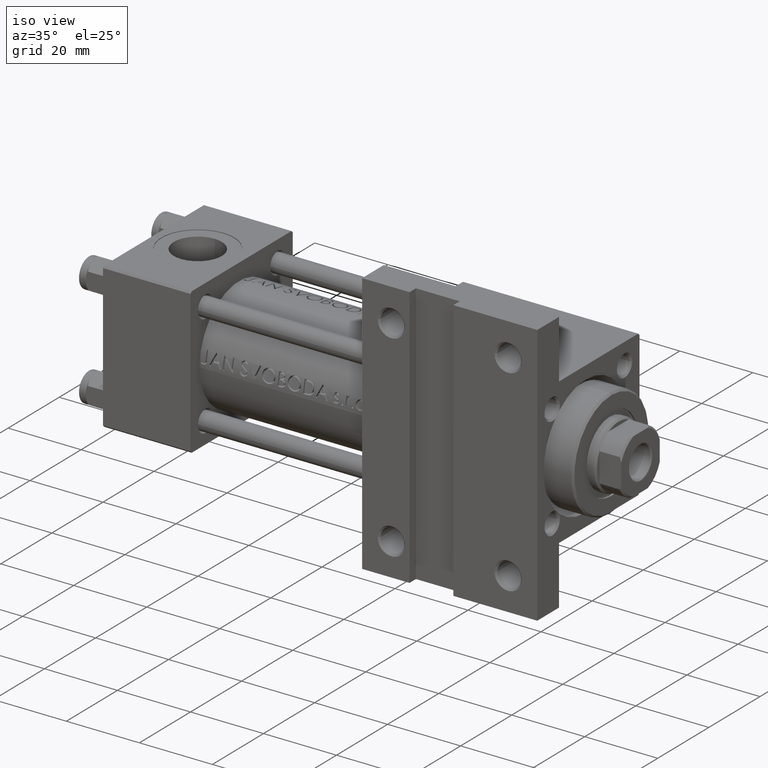
[diagram: clean part render]
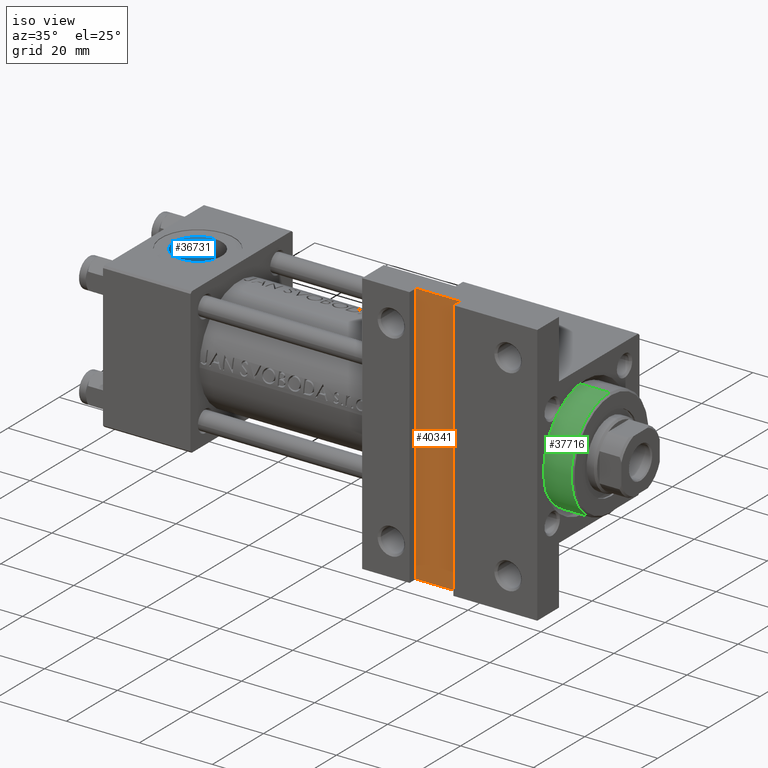
[diagram: same view with three faces highlighted in distinct colors, each labeled with its STEP entity id]
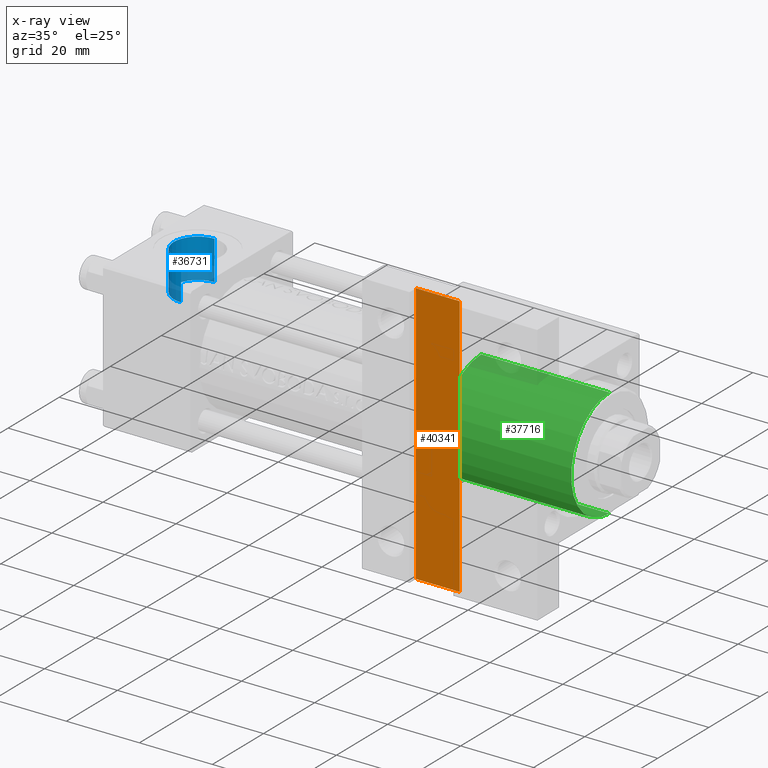
[diagram: x-ray of the same camera — body ghosted, the three highlighted faces saturated]
A machine part, iso view with three faces highlighted in distinct colors.
The next image is the same camera in x-ray (body ghosted, the three faces saturated) — at least one of them is partly hidden behind the body in this view.
Their STEP definitions:

[orange] entity #40341 — the highlighted planar face has unit normal (0, -1, 0).
#4862 = VERTEX_POINT ( 'NONE', #45024 ) ;
#5139 = VECTOR ( 'NONE', #45337, 1000.000000000000000 ) ;
#5518 = CARTESIAN_POINT ( 'NONE',  ( 95.99999999999997158, 35.99999999999995026, -17.50000000000000000 ) ) ;
#6438 = EDGE_LOOP ( 'NONE', ( #36303, #31944, #11851, #46805 ) ) ;
#7615 = EDGE_CURVE ( 'NONE', #34811, #4862, #28615, .T. ) ;
#10166 = EDGE_CURVE ( 'NONE', #42000, #34811, #10442, .T. ) ;
#10427 = PLANE ( 'NONE',  #13564 ) ;
#10442 = LINE ( 'NONE', #11187, #5139 ) ;
#10927 = DIRECTION ( 'NONE',  ( 0.000000000000000000, 1.000000000000000000, 0.000000000000000000 ) ) ;
#11187 = CARTESIAN_POINT ( 'NONE',  ( 95.99999999999997158, -35.99999999999999289, -17.50000000000000000 ) ) ;
#11630 = EDGE_CURVE ( 'NONE', #36625, #42000, #32510, .T. ) ;
#11851 = ORIENTED_EDGE ( 'NONE', *, *, #41332, .T. ) ;
#13564 = AXIS2_PLACEMENT_3D ( 'NONE', #47567, #29098, #37099 ) ;
#13644 = CARTESIAN_POINT ( 'NONE',  ( 83.99999999999997158, 35.99999999999995026, -17.50000000000000000 ) ) ;
#16984 = VECTOR ( 'NONE', #43840, 1000.000000000000000 ) ;
#17814 = DIRECTION ( 'NONE',  ( 1.000000000000000000, 0.000000000000000000, 0.000000000000000000 ) ) ;
#21286 = CARTESIAN_POINT ( 'NONE',  ( 83.99999999999997158, 35.99999999999995026, -17.50000000000000000 ) ) ;
#21631 = CARTESIAN_POINT ( 'NONE',  ( 83.99999999999997158, -35.99999999999999289, -17.50000000000000000 ) ) ;
#28615 = LINE ( 'NONE', #21631, #16984 ) ;
#29098 = DIRECTION ( 'NONE',  ( 0.000000000000000000, 0.000000000000000000, -1.000000000000000000 ) ) ;
#30298 = VECTOR ( 'NONE', #10927, 1000.000000000000000 ) ;
#30591 = LINE ( 'NONE', #45326, #30298 ) ;
#31944 = ORIENTED_EDGE ( 'NONE', *, *, #7615, .T. ) ;
#32510 = LINE ( 'NONE', #21286, #41022 ) ;
#34492 = CARTESIAN_POINT ( 'NONE',  ( 95.99999999999997158, -36.00000000000001421, -17.50000000000000000 ) ) ;
#34811 = VERTEX_POINT ( 'NONE', #34492 ) ;
#36303 = ORIENTED_EDGE ( 'NONE', *, *, #10166, .T. ) ;
#36625 = VERTEX_POINT ( 'NONE', #13644 ) ;
#37099 = DIRECTION ( 'NONE',  ( -1.000000000000000000, 0.000000000000000000, -0.000000000000000000 ) ) ;
#40341 = ADVANCED_FACE ( 'NONE', ( #48303 ), #10427, .T. ) ;
#41022 = VECTOR ( 'NONE', #17814, 1000.000000000000000 ) ;
#41332 = EDGE_CURVE ( 'NONE', #4862, #36625, #30591, .T. ) ;
#42000 = VERTEX_POINT ( 'NONE', #5518 ) ;
#43840 = DIRECTION ( 'NONE',  ( -1.000000000000000000, -0.000000000000000000, -0.000000000000000000 ) ) ;
#45024 = CARTESIAN_POINT ( 'NONE',  ( 83.99999999999997158, -35.99999999999999289, -17.50000000000000000 ) ) ;
#45326 = CARTESIAN_POINT ( 'NONE',  ( 83.99999999999997158, -35.99999999999999289, -17.50000000000000000 ) ) ;
#45337 = DIRECTION ( 'NONE',  ( -0.000000000000000000, -1.000000000000000000, -0.000000000000000000 ) ) ;
#46805 = ORIENTED_EDGE ( 'NONE', *, *, #11630, .T. ) ;
#47567 = CARTESIAN_POINT ( 'NONE',  ( 0.000000000000000000, 0.000000000000000000, -17.50000000000000000 ) ) ;
#48303 = FACE_OUTER_BOUND ( 'NONE', #6438, .T. ) ;

[blue] entity #36731 — the highlighted cylindrical surface (edge-blend (fillet) strip) has radius 6.58 mm, axis along (-0, -0, 1).
#1278 = EDGE_CURVE ( 'NONE', #33983, #31104, #14194, .T. ) ;
#3733 = DIRECTION ( 'NONE',  ( 0.000000000000000000, -1.000000000000000000, -8.673617379884036705E-17 ) ) ;
#4503 = AXIS2_PLACEMENT_3D ( 'NONE', #30392, #3733, #18691 ) ;
#6716 = DIRECTION ( 'NONE',  ( -0.000000000000000000, -1.000000000000000000, -8.673617379884036705E-17 ) ) ;
#8670 = AXIS2_PLACEMENT_3D ( 'NONE', #29833, #10658, #41571 ) ;
#10010 = ORIENTED_EDGE ( 'NONE', *, *, #17958, .T. ) ;
#10658 = DIRECTION ( 'NONE',  ( -0.000000000000000000, -1.000000000000000000, -8.673617379884036705E-17 ) ) ;
#10837 = CIRCLE ( 'NONE', #26758, 6.579999999999998295 ) ;
#11456 = CARTESIAN_POINT ( 'NONE',  ( 12.00000000000000000, -19.80000000000000426, -6.580000000000000071 ) ) ;
#13479 = VECTOR ( 'NONE', #40881, 1000.000000000000000 ) ;
#14194 = LINE ( 'NONE', #29395, #13479 ) ;
#14910 = EDGE_CURVE ( 'NONE', #18425, #31104, #25980, .T. ) ;
#15135 = FACE_OUTER_BOUND ( 'NONE', #32042, .T. ) ;
#17329 = CARTESIAN_POINT ( 'NONE',  ( 12.00000000000000000, -19.80000000000000426, 6.579999999999996518 ) ) ;
#17346 = EDGE_CURVE ( 'NONE', #33983, #48974, #10837, .T. ) ;
#17958 = EDGE_CURVE ( 'NONE', #48974, #18425, #25398, .T. ) ;
#18425 = VERTEX_POINT ( 'NONE', #17329 ) ;
#18691 = DIRECTION ( 'NONE',  ( 0.000000000000000000, 0.000000000000000000, -1.000000000000000000 ) ) ;
#21657 = CARTESIAN_POINT ( 'NONE',  ( 12.00000000000000000, -9.100000000000004974, 6.579999999999997407 ) ) ;
#22356 = CYLINDRICAL_SURFACE ( 'NONE', #8670, 6.579999999999998295 ) ;
#25398 = LINE ( 'NONE', #21657, #41132 ) ;
#25980 = CIRCLE ( 'NONE', #4503, 6.579999999999998295 ) ;
#26758 = AXIS2_PLACEMENT_3D ( 'NONE', #39269, #45342, #27780 ) ;
#27780 = DIRECTION ( 'NONE',  ( 0.000000000000000000, 0.000000000000000000, -1.000000000000000000 ) ) ;
#28849 = CARTESIAN_POINT ( 'NONE',  ( 12.00000000000000000, -9.039999999999977831, 6.579999999999997407 ) ) ;
#29395 = CARTESIAN_POINT ( 'NONE',  ( 12.00000000000000000, -9.100000000000004974, -6.579999999999999183 ) ) ;
#29833 = CARTESIAN_POINT ( 'NONE',  ( 12.00000000000000000, -9.100000000000004974, -7.892991815694479182E-16 ) ) ;
#30392 = CARTESIAN_POINT ( 'NONE',  ( 12.00000000000000000, -19.80000000000000426, -1.717376241217039812E-15 ) ) ;
#31104 = VERTEX_POINT ( 'NONE', #11456 ) ;
#32042 = EDGE_LOOP ( 'NONE', ( #33401, #10010, #37471, #40157 ) ) ;
#33401 = ORIENTED_EDGE ( 'NONE', *, *, #17346, .T. ) ;
#33983 = VERTEX_POINT ( 'NONE', #40371 ) ;
#36731 = ADVANCED_FACE ( 'NONE', ( #15135 ), #22356, .F. ) ;
#37471 = ORIENTED_EDGE ( 'NONE', *, *, #14910, .T. ) ;
#39269 = CARTESIAN_POINT ( 'NONE',  ( 12.00000000000000000, -9.039999999999977831, -7.840950111415154262E-16 ) ) ;
#40157 = ORIENTED_EDGE ( 'NONE', *, *, #1278, .F. ) ;
#40371 = CARTESIAN_POINT ( 'NONE',  ( 12.00000000000000000, -9.039999999999977831, -6.579999999999999183 ) ) ;
#40881 = DIRECTION ( 'NONE',  ( -0.000000000000000000, -1.000000000000000000, -8.673617379884036705E-17 ) ) ;
#41132 = VECTOR ( 'NONE', #6716, 1000.000000000000000 ) ;
#41571 = DIRECTION ( 'NONE',  ( 0.000000000000000000, 0.000000000000000000, -1.000000000000000000 ) ) ;
#45342 = DIRECTION ( 'NONE',  ( -0.000000000000000000, 1.000000000000000000, 8.673617379884039170E-17 ) ) ;
#48974 = VERTEX_POINT ( 'NONE', #28849 ) ;

[green] entity #37716 — the highlighted cylindrical surface (partial cylindrical patch) has radius 15 mm, axis along (-1, 0, 0).
#246 = AXIS2_PLACEMENT_3D ( 'NONE', #11077, #19525, #41250 ) ;
#880 = ORIENTED_EDGE ( 'NONE', *, *, #24241, .T. ) ;
#1359 = LINE ( 'NONE', #36500, #24439 ) ;
#1564 = CARTESIAN_POINT ( 'NONE',  ( -15.00000000000000000, 0.000000000000000000, 0.000000000000000000 ) ) ;
#3928 = DIRECTION ( 'NONE',  ( -1.000000000000000000, 0.000000000000000000, 0.000000000000000000 ) ) ;
#5779 = EDGE_LOOP ( 'NONE', ( #14604, #880, #25996, #9849 ) ) ;
#6017 = EDGE_CURVE ( 'NONE', #7117, #26723, #32037, .T. ) ;
#6418 = AXIS2_PLACEMENT_3D ( 'NONE', #27267, #31019, #34763 ) ;
#7117 = VERTEX_POINT ( 'NONE', #22289 ) ;
#7660 = CYLINDRICAL_SURFACE ( 'NONE', #34152, 15.00000000000000000 ) ;
#9172 = CARTESIAN_POINT ( 'NONE',  ( 15.00000000000000000, 1.836970198721029589E-15, 0.000000000000000000 ) ) ;
#9849 = ORIENTED_EDGE ( 'NONE', *, *, #16378, .F. ) ;
#11077 = CARTESIAN_POINT ( 'NONE',  ( 0.000000000000000000, 0.000000000000000000, 35.19999999999999574 ) ) ;
#11778 = LINE ( 'NONE', #34698, #21860 ) ;
#12023 = DIRECTION ( 'NONE',  ( -0.000000000000000000, -0.000000000000000000, -1.000000000000000000 ) ) ;
#14604 = ORIENTED_EDGE ( 'NONE', *, *, #6017, .T. ) ;
#16378 = EDGE_CURVE ( 'NONE', #7117, #34999, #1359, .T. ) ;
#19525 = DIRECTION ( 'NONE',  ( 0.000000000000000000, 0.000000000000000000, -1.000000000000000000 ) ) ;
#21860 = VECTOR ( 'NONE', #12023, 1000.000000000000000 ) ;
#22289 = CARTESIAN_POINT ( 'NONE',  ( -15.00000000000000000, 0.000000000000000000, 35.19999999999999574 ) ) ;
#22855 = CARTESIAN_POINT ( 'NONE',  ( 0.000000000000000000, 0.000000000000000000, 28.69999999999999929 ) ) ;
#24241 = EDGE_CURVE ( 'NONE', #26723, #37917, #11778, .T. ) ;
#24439 = VECTOR ( 'NONE', #28989, 1000.000000000000000 ) ;
#25996 = ORIENTED_EDGE ( 'NONE', *, *, #40953, .T. ) ;
#26723 = VERTEX_POINT ( 'NONE', #27124 ) ;
#27124 = CARTESIAN_POINT ( 'NONE',  ( 15.00000000000000000, 1.836970198721029589E-15, 35.19999999999999574 ) ) ;
#27267 = CARTESIAN_POINT ( 'NONE',  ( 0.000000000000000000, 0.000000000000000000, 0.000000000000000000 ) ) ;
#28989 = DIRECTION ( 'NONE',  ( -0.000000000000000000, -0.000000000000000000, -1.000000000000000000 ) ) ;
#31019 = DIRECTION ( 'NONE',  ( 0.000000000000000000, 0.000000000000000000, 1.000000000000000000 ) ) ;
#32037 = CIRCLE ( 'NONE', #246, 15.00000000000000000 ) ;
#33459 = CIRCLE ( 'NONE', #6418, 15.00000000000000000 ) ;
#34152 = AXIS2_PLACEMENT_3D ( 'NONE', #22855, #38072, #3928 ) ;
#34698 = CARTESIAN_POINT ( 'NONE',  ( 15.00000000000000000, 1.836970198721029589E-15, 28.69999999999999929 ) ) ;
#34763 = DIRECTION ( 'NONE',  ( 1.000000000000000000, 0.000000000000000000, 0.000000000000000000 ) ) ;
#34999 = VERTEX_POINT ( 'NONE', #1564 ) ;
#36500 = CARTESIAN_POINT ( 'NONE',  ( -15.00000000000000000, 0.000000000000000000, 28.69999999999999929 ) ) ;
#37716 = ADVANCED_FACE ( 'NONE', ( #45553 ), #7660, .T. ) ;
#37917 = VERTEX_POINT ( 'NONE', #9172 ) ;
#38072 = DIRECTION ( 'NONE',  ( -0.000000000000000000, -0.000000000000000000, -1.000000000000000000 ) ) ;
#40953 = EDGE_CURVE ( 'NONE', #37917, #34999, #33459, .T. ) ;
#41250 = DIRECTION ( 'NONE',  ( 1.000000000000000000, 0.000000000000000000, 0.000000000000000000 ) ) ;
#45553 = FACE_OUTER_BOUND ( 'NONE', #5779, .T. ) ;